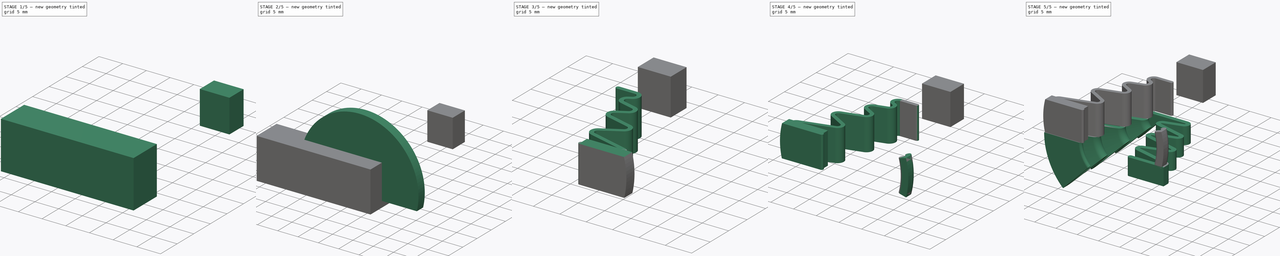
[diagram: build sequence overview — one tinted view per stage of 5, left to right]
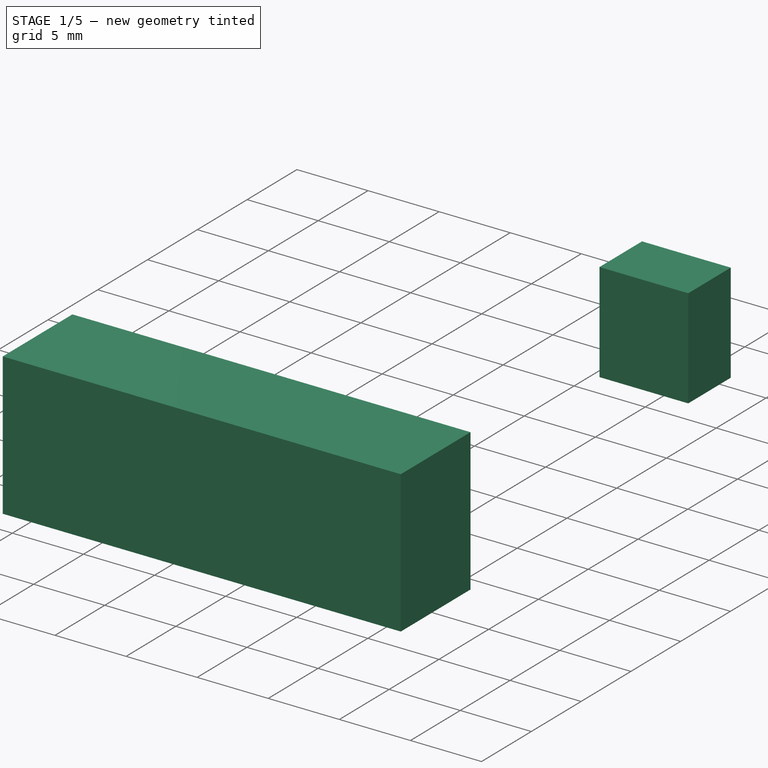
[diagram: stage 1 of 5 — iso view after this stage's code; geometry added in this stage tinted green]
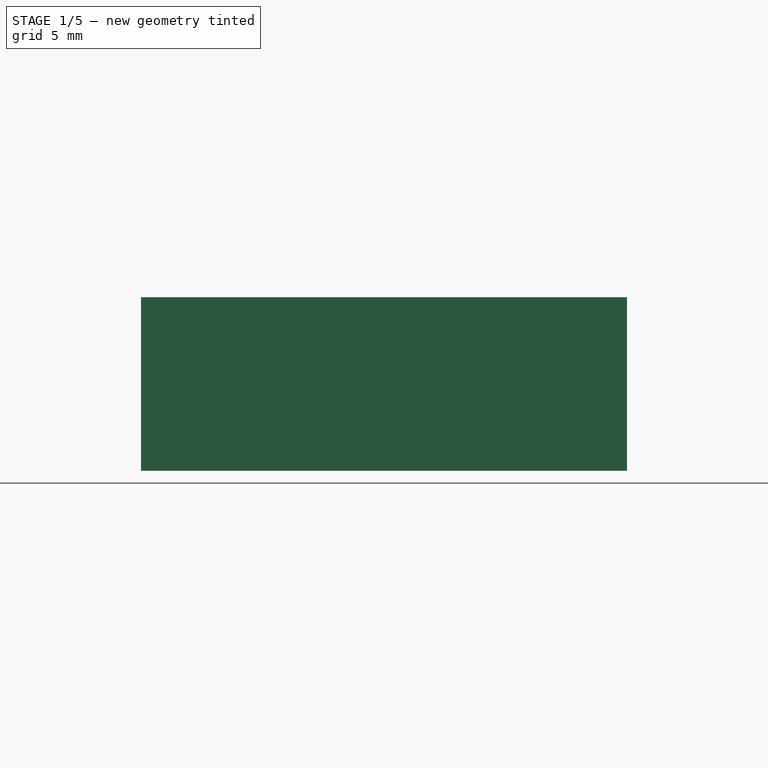
[diagram: stage 1 of 5 — front view after this stage's code; geometry added in this stage tinted green]
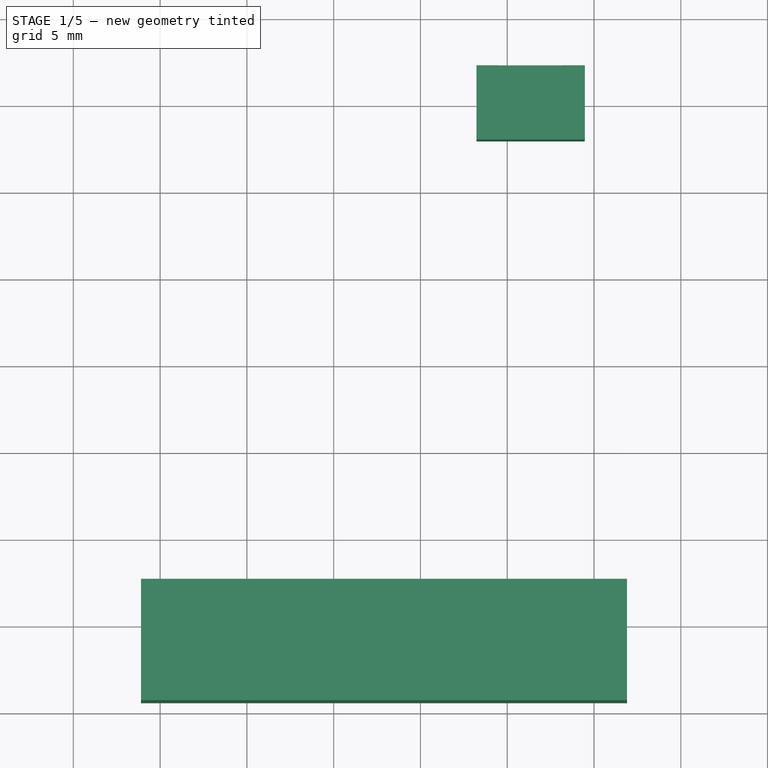
[diagram: stage 1 of 5 — top view after this stage's code; geometry added in this stage tinted green]
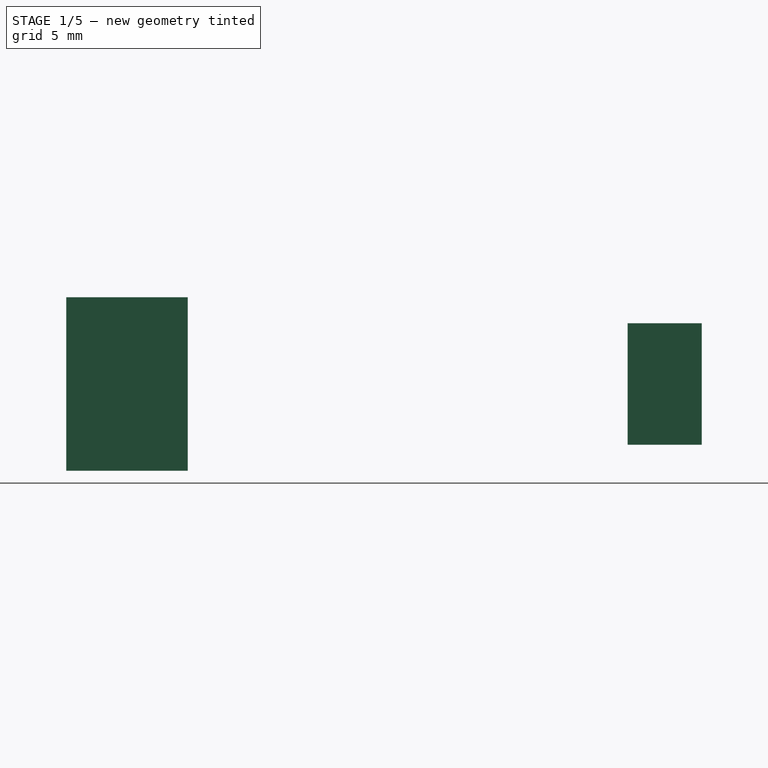
[diagram: stage 1 of 5 — right view after this stage's code; geometry added in this stage tinted green]
FCSTD DOCUMENT  (FreeCAD 0.21R33771 (Git))
Label: Modul-drazice-spring_42
License: All rights reserved
LicenseURL: https://en.wikipedia.org/wiki/All_rights_reserved
objects: Sketcher::SketchObject×5, Part::Offset2D×3, Part::Box×3, Part::Cut×3, Part::Revolution×2, Part::Extrusion×2, PartDesign::Pad×2, Part::FeaturePython×1, Part::Cylinder×1, Part::Compound×1, Part::Mirroring×1, PartDesign::Body×1
note: 27 computed .brp shape members not serialized (recipe doc carries the construction recipe); baked Part::Feature solids carry a one-line shape summary decoded from their .brp

FEATURE [Part::Box] Box002  label="Cube002"
  AttacherType = Attacher::AttachEngine3D
  Height = 10
  Length = 28
  Placement = pos=(-21.1,-4.4,-1.5) rot=(0,0,1;0rad)
  Width = 7
FEATURE [Sketcher::SketchObject] Sketch003
  FullyConstrained = false
  MapMode = 5
  Placement = pos=(0,0,7) rot=(0,0,1;0rad)
  sketch-geometry (12):
    g0: ArcOfCircle CenterX=1.34946 CenterY=30.6632 CenterZ=0 NormalX=0 NormalY=0 NormalZ=1 AngleXU=0 Radius=2.35 StartAngle=3.14159 EndAngle=6.28319
    g1: LineSegment StartX=-1.77054 StartY=32.2132 StartZ=0 EndX=-1.77054 EndY=27.9432 EndZ=0
    g2: LineSegment StartX=-1.77054 StartY=27.9432 StartZ=0 EndX=4.46946 EndY=27.9432 EndZ=0
    g3: LineSegment StartX=3.69946 StartY=30.6632 StartZ=0 EndX=3.69946 EndY=31.6632 EndZ=0
    g4: LineSegment StartX=3.69946 StartY=31.6632 StartZ=0 EndX=3.19946 EndY=31.6632 EndZ=0
    g5: LineSegment StartX=3.19946 StartY=31.6632 StartZ=0 EndX=3.19946 EndY=32.2132 EndZ=0
    g6: LineSegment StartX=3.19946 StartY=32.2132 StartZ=0 EndX=4.46946 EndY=32.2132 EndZ=0
    g7: LineSegment StartX=4.46946 StartY=32.2132 StartZ=0 EndX=4.46946 EndY=27.9432 EndZ=0
    g8: LineSegment StartX=-1.00054 StartY=30.6632 StartZ=0 EndX=-1.00054 EndY=31.6632 EndZ=0
    g9: LineSegment StartX=-1.00054 StartY=31.6632 StartZ=0 EndX=-0.500541 EndY=31.6632 EndZ=0
    g10: LineSegment StartX=-0.500541 StartY=31.6632 StartZ=0 EndX=-0.500541 EndY=32.2132 EndZ=0
    g11: LineSegment StartX=-0.500541 StartY=32.2132 StartZ=0 EndX=-1.77054 EndY=32.2132 EndZ=0
  constraints (33):
    c: Radius(g0) = 2.35
    c: Horizontal(g0,g0)
    c: Vertical(g1)
    c: Coincident(g2,g1)
    c: Horizontal(g2)
    c: Vertical(g3)
    c: Coincident(g4,g3)
    c: Horizontal(g4)
    c: Coincident(g5,g4)
    c: Vertical(g5)
    c: Coincident(g6,g5)
    c: Horizontal(g6)
    c: Coincident(g7,g6)
    c: Tangent(g3,g0) = -1.5708
    c: Coincident(g7,g2)
    c: Vertical(g7)
    c: DistanceY(g3,g3) = 1
    c: Coincident(g9,g8)
    c: Horizontal(g9)
    c: Coincident(g10,g9)
    c: Vertical(g10)
    c: Coincident(g11,g10)
    c: Horizontal(g11)
    c: Coincident(g11,g1)
    c: Tangent(g8,g0) = 1.5708
    c: Equal(g11,g6)
    c: Horizontal(g10,g5)
    c: Equal(g10,g5)
    c: Equal(g9,g4)
    c: DistanceY(g7,g7) = 4.27
    c: DistanceX(g2,g2) = 6.24
    c: DistanceY(g2,g0) = 2.72
    c: DistanceX(g4,g4) = 0.5
FEATURE [PartDesign::Pad] Pad
  Direction = (0,0,1)
  Length = 7
  Length2 = 10
  Placement = pos=(0,0,7) rot=(0,0,1;0rad)
  Profile = -> Sketch003
  ReferenceAxis = -> Sketch003 [N_Axis]
  Reversed = true
  Type = 0
FEATURE [Sketcher::SketchObject] Sketch004
  FullyConstrained = false
  MapMode = 5
  Placement = pos=(0,0,7) rot=(0,0,1;0rad)
  Support = -> [Pad]
  sketch-geometry (4):
    g0: LineSegment StartX=-1.76991 StartY=32.2088 StartZ=0 EndX=4.47012 EndY=32.2088 EndZ=0
    g1: LineSegment StartX=4.47012 StartY=32.2088 StartZ=0 EndX=4.47012 EndY=27.9435 EndZ=0
    g2: LineSegment StartX=4.47012 StartY=27.9435 StartZ=0 EndX=-1.76991 EndY=27.9435 EndZ=0
    g3: LineSegment StartX=-1.76991 StartY=27.9435 StartZ=0 EndX=-1.76991 EndY=32.2088 EndZ=0
  constraints (8):
    c: Coincident(g0,g1)
    c: Coincident(g1,g2)
    c: Coincident(g2,g3)
    c: Coincident(g3,g0)
    c: Horizontal(g0)
    c: Horizontal(g2)
    c: Vertical(g1)
    c: Vertical(g3)
FEATURE [PartDesign::Pad] Pad001
  BaseFeature = -> Pad
  Direction = (0,0,1)
  Length = 1
  Length2 = 10
  Placement = pos=(0,0,7) rot=(0,0,1;0rad)
  Profile = -> Sketch004
  ReferenceAxis = -> Sketch004 [N_Axis]
  Reversed = true
  Type = 0
FEATURE [PartDesign::Body] Body
  Group = -> [Sketch003,Pad,Sketch004,Pad001]
  Origin = -> Origin
  Placement = pos=(0,-7.8,0) rot=(0,0,1;0rad)
  Tip = -> Pad001
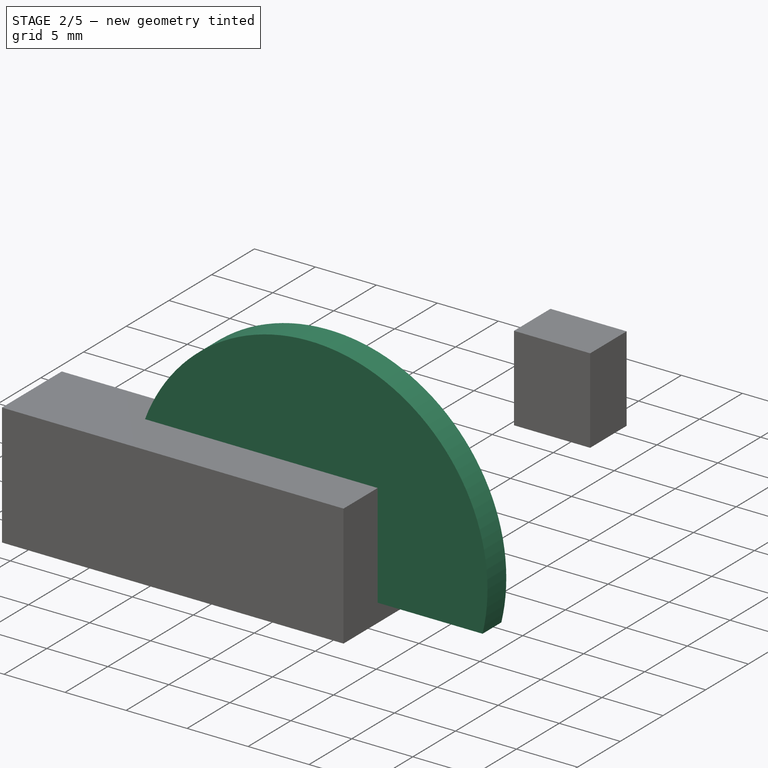
[diagram: stage 2 of 5 — iso view after this stage's code; geometry added in this stage tinted green]
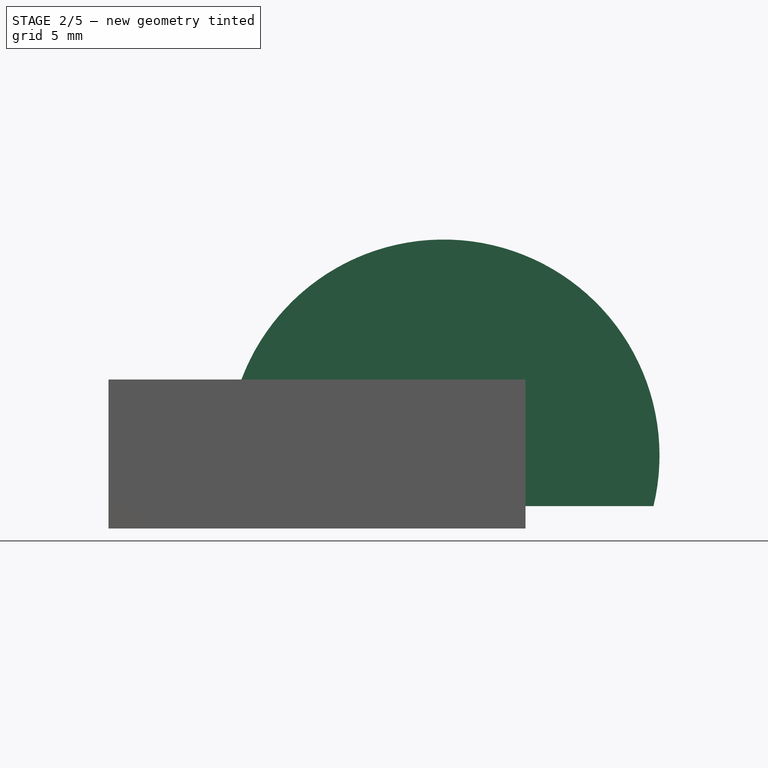
[diagram: stage 2 of 5 — front view after this stage's code; geometry added in this stage tinted green]
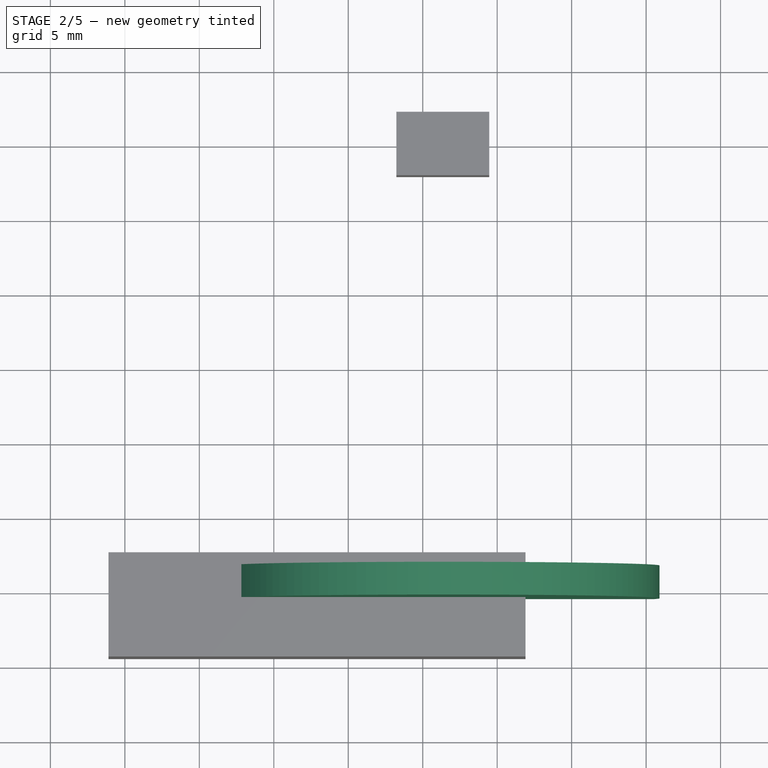
[diagram: stage 2 of 5 — top view after this stage's code; geometry added in this stage tinted green]
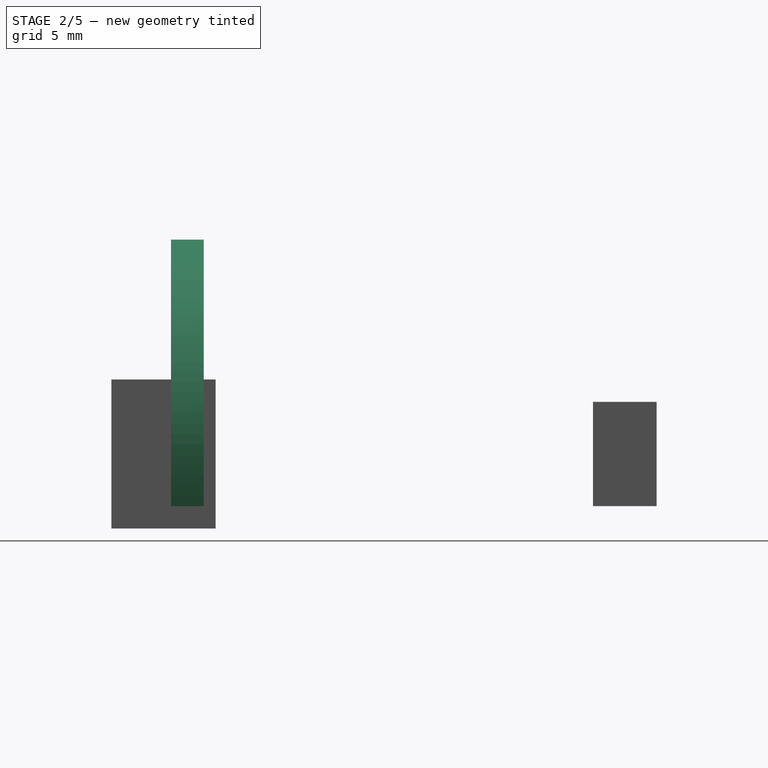
[diagram: stage 2 of 5 — right view after this stage's code; geometry added in this stage tinted green]
FEATURE [Part::Cylinder] Cylinder
  Angle = 360
  AttacherType = Attacher::AttachEngine3D
  FirstAngle = 0
  Height = 2.2
  Placement = pos=(1.4,1.8,3.4) rot=(1,0,0;1.5708rad)
  Radius = 14.5
  SecondAngle = 0
FEATURE [Part::Box] Box  label="Cube"
  AttacherType = Attacher::AttachEngine3D
  Height = 18
  Length = 32
  Placement = pos=(-16,-2,-18) rot=(0,0,1;0rad)
  Width = 4
FEATURE [Part::Cut] Cut
  Base = -> Cylinder
  Tool = -> Box
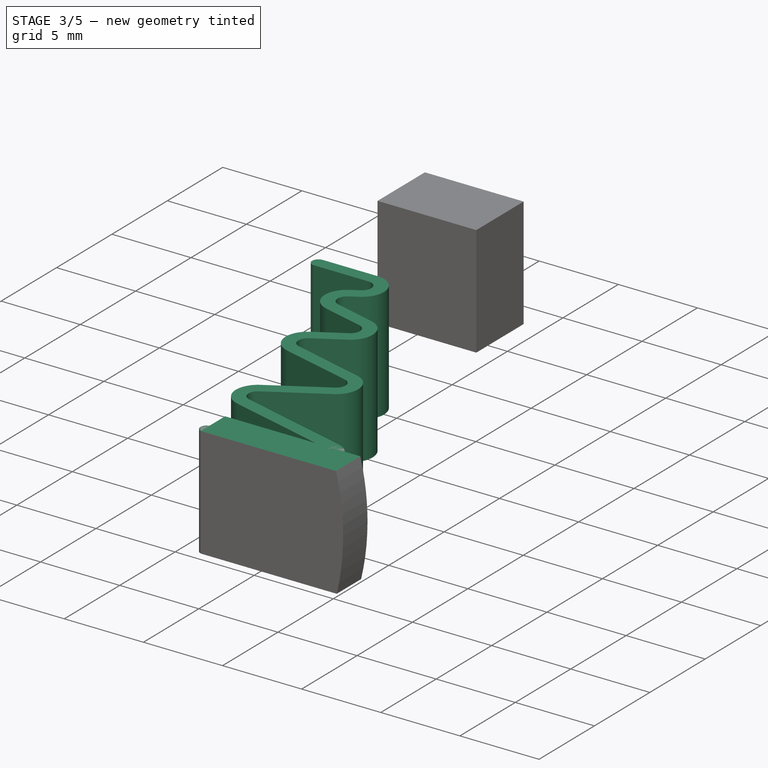
[diagram: stage 3 of 5 — iso view after this stage's code; geometry added in this stage tinted green]
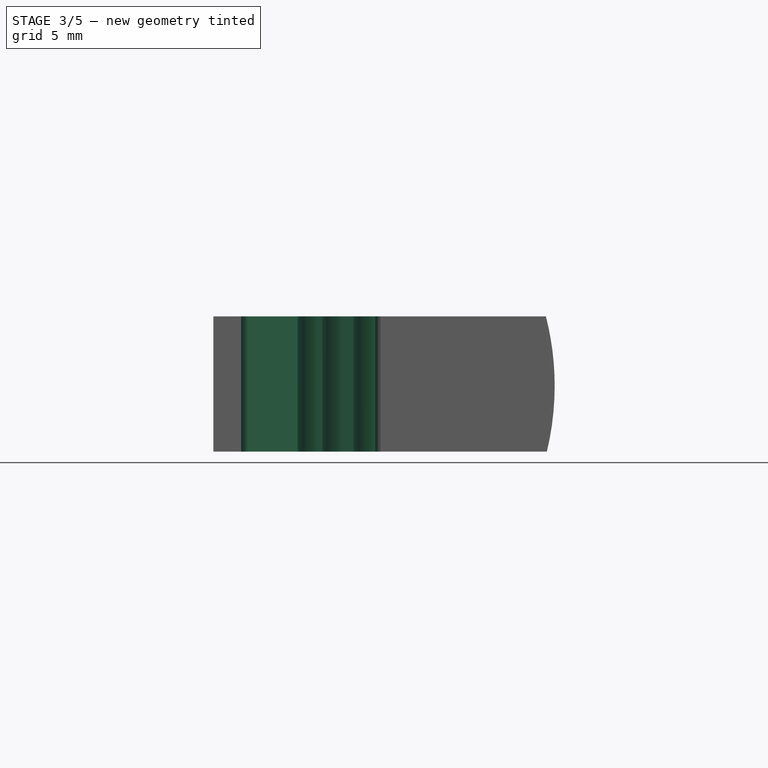
[diagram: stage 3 of 5 — front view after this stage's code; geometry added in this stage tinted green]
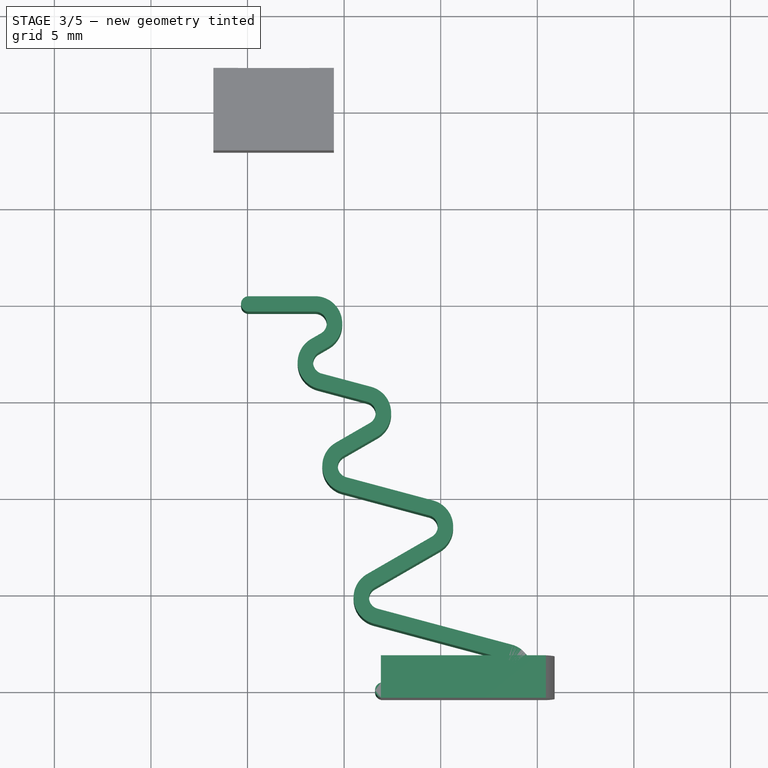
[diagram: stage 3 of 5 — top view after this stage's code; geometry added in this stage tinted green]
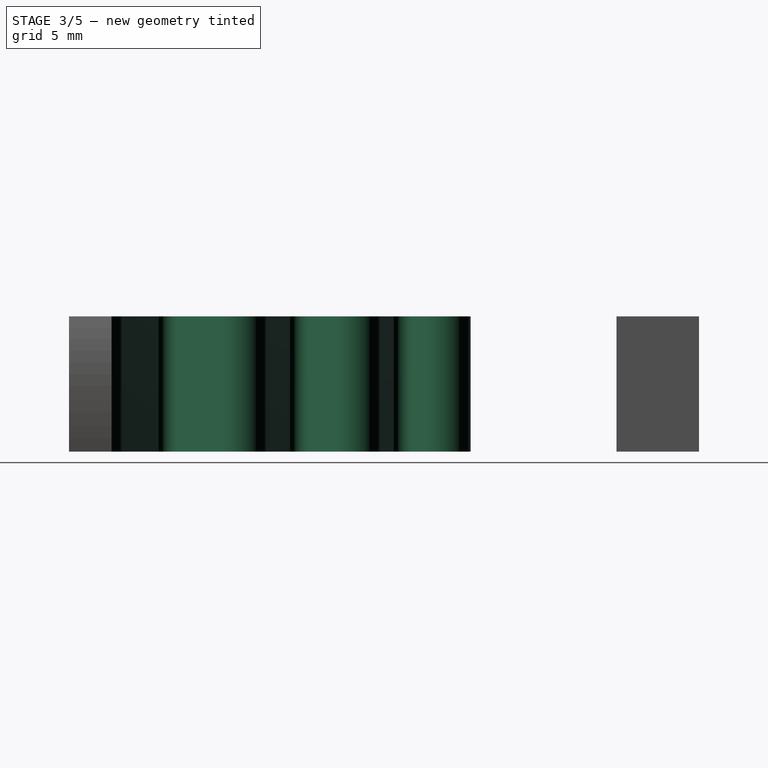
[diagram: stage 3 of 5 — right view after this stage's code; geometry added in this stage tinted green]
FEATURE [Part::Extrusion] Extrude001
  Base = -> Offset2D002
  Dir = (0,0,1)
  DirMode = 2
  FaceMakerClass = Part::FaceMakerBullseye
  LengthFwd = 7
  LengthRev = 0
  Solid = true
  Symmetric = false
FEATURE [Part::Box] Box001  label="Cube001"
  AttacherType = Attacher::AttachEngine3D
  Height = 18
  Length = 32
  Placement = pos=(-16,-3,7) rot=(0,0,1;0rad)
  Width = 5
FEATURE [Part::Cut] Cut001
  Base = -> Cut
  Tool = -> Box001
FEATURE [Part::Cut] Cut002
  Base = -> Cut001
  Tool = -> Box002
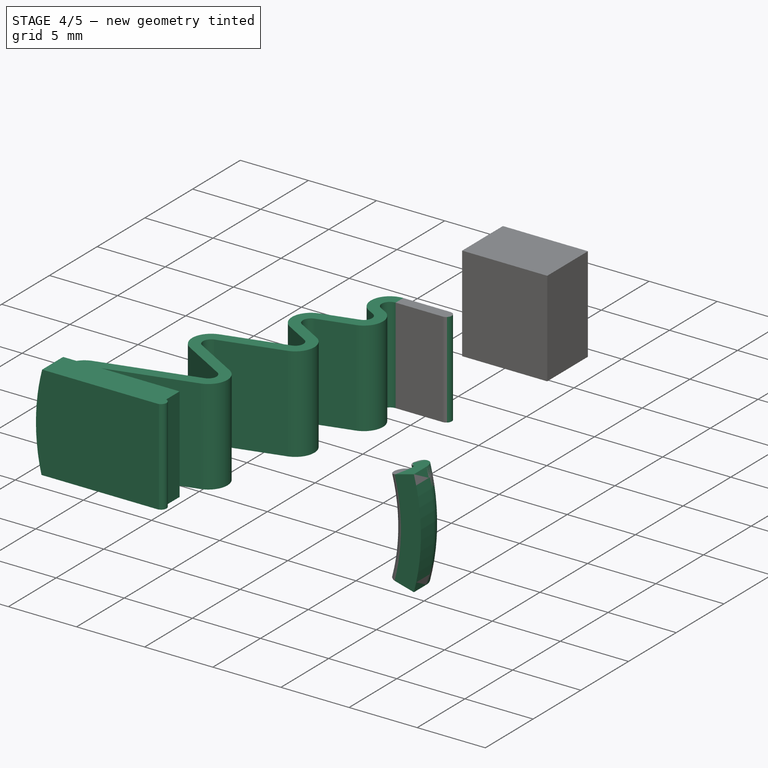
[diagram: stage 4 of 5 — iso view after this stage's code; geometry added in this stage tinted green]
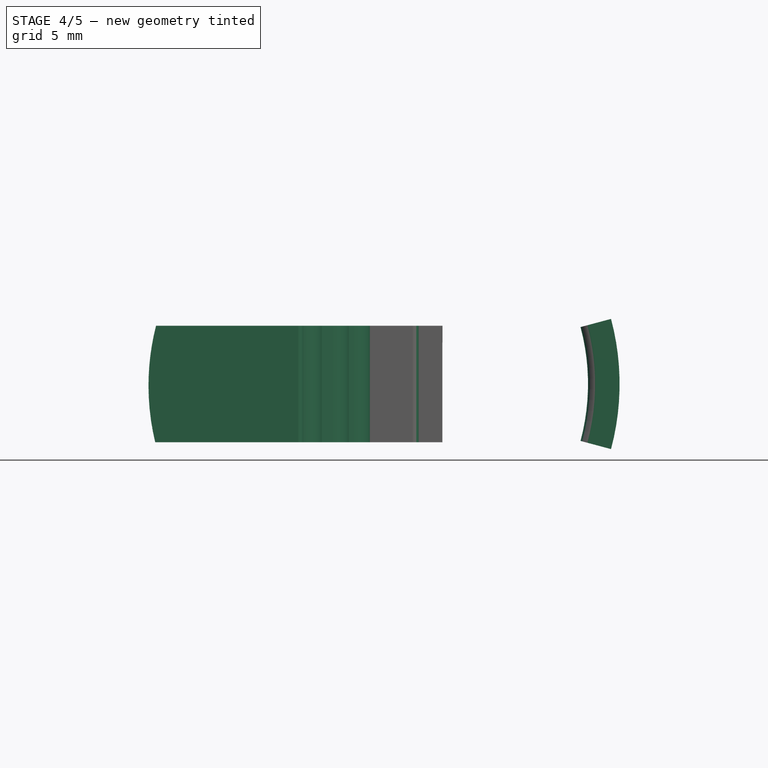
[diagram: stage 4 of 5 — front view after this stage's code; geometry added in this stage tinted green]
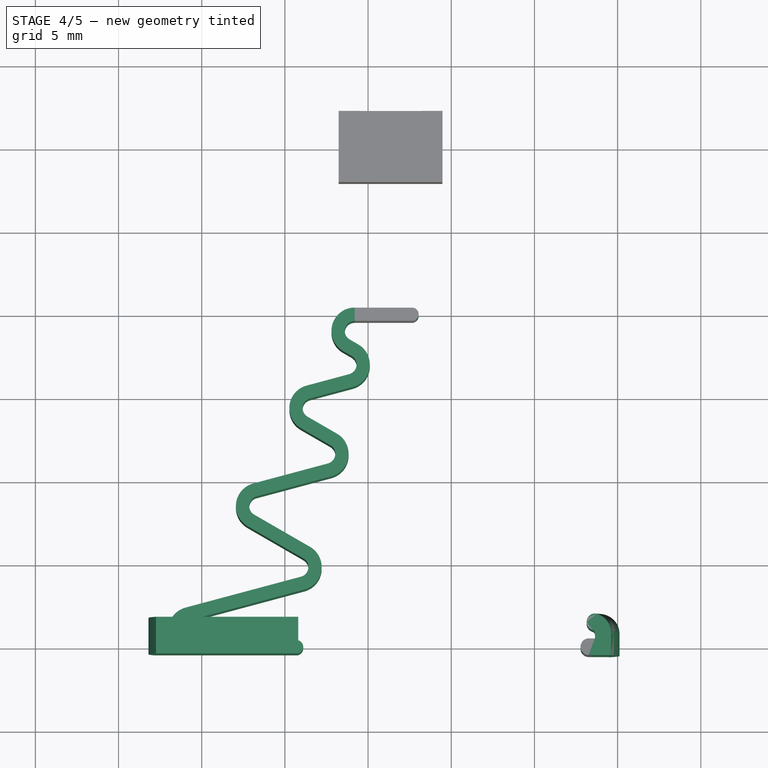
[diagram: stage 4 of 5 — top view after this stage's code; geometry added in this stage tinted green]
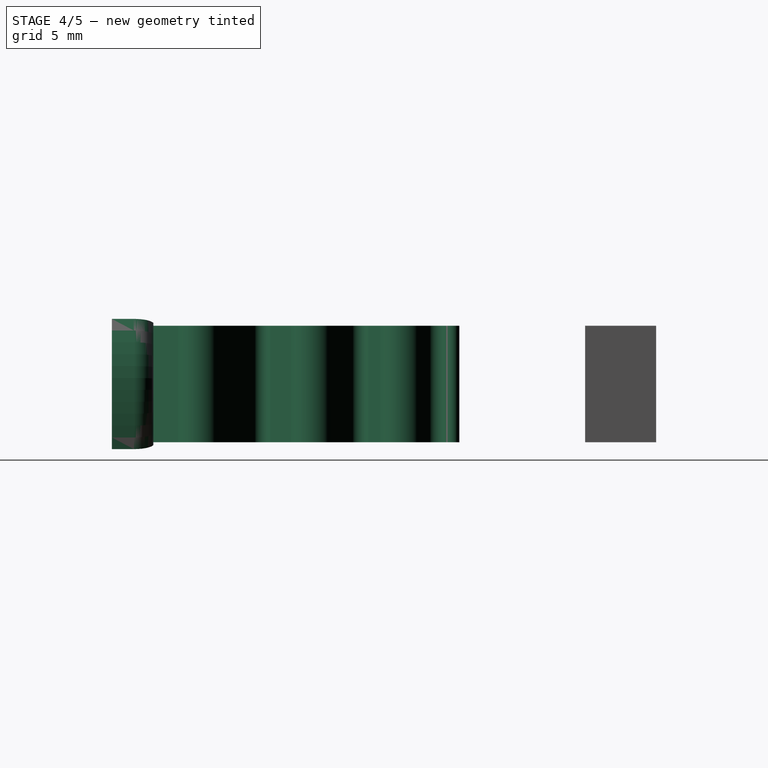
[diagram: stage 4 of 5 — right view after this stage's code; geometry added in this stage tinted green]
FEATURE [Sketcher::SketchObject] Sketch001
  FullyConstrained = false
  sketch-geometry (4):
    g0: LineSegment StartX=13.721 StartY=0 StartZ=0 EndX=14.6185 EndY=0 EndZ=0
    g1: ArcOfCircle CenterX=13.9185 CenterY=0.818954 CenterZ=0 NormalX=0 NormalY=0 NormalZ=1 AngleXU=0 Radius=0.7 StartAngle=1e-16 EndAngle=1.309
    g2: LineSegment StartX=7 StartY=0 StartZ=0 EndX=2.24532 EndY=17.3533 EndZ=0
    g3: LineSegment StartX=14.6185 StartY=0.818954 StartZ=0 EndX=14.6185 EndY=0 EndZ=0
  constraints (6):
    c: PointOnObject(g0,g-1)
    c: Horizontal(g0)
    c: Vertical(g3)
    c: Tangent(g1,g3) = 1.5708
    c: Coincident(g0,g3)
    c: Radius(g1) = 0.7
FEATURE [Part::Offset2D] Offset2D001  label="OffsetRot"
  Fill = false
  Intersection = false
  Join = 1
  Mode = 1
  SelfIntersection = false
  Source = -> Sketch001
  Value = 0.5
FEATURE [Sketcher::SketchObject] Sketch002
  FullyConstrained = false
  sketch-geometry (17):
    g0: LineSegment StartX=13.5743 StartY=1.96593 StartZ=0 EndX=6.62963 EndY=3.82674 EndZ=0
    g1: ArcOfCircle CenterX=6.88845 CenterY=4.79266 CenterZ=0 NormalX=0 NormalY=0 NormalZ=1 AngleXU=0 Radius=1 StartAngle=2.0944 EndAngle=4.45059
    g2: LineSegment StartX=6.38845 StartY=5.65869 StartZ=0 EndX=9.74495 EndY=7.59657 EndZ=0
    g3: ArcOfCircle CenterX=9.24495 CenterY=8.46259 CenterZ=0 NormalX=0 NormalY=0 NormalZ=1 AngleXU=0 Radius=1 StartAngle=5.23599 EndAngle=7.59218
    g4: LineSegment StartX=9.50377 StartY=9.42852 StartZ=0 EndX=5.01168 EndY=10.6322 EndZ=0
    g5: ArcOfCircle CenterX=5.2705 CenterY=11.5981 CenterZ=0 NormalX=0 NormalY=0 NormalZ=1 AngleXU=0 Radius=1 StartAngle=2.0944 EndAngle=4.45059
    g6: LineSegment StartX=4.7705 StartY=12.4641 StartZ=0 EndX=6.53443 EndY=13.4825 EndZ=0
    g7: LineSegment StartX=15 StartY=0 StartZ=0 EndX=3 EndY=22 EndZ=0
    g8: LineSegment StartX=7 StartY=0 StartZ=0 EndX=0.616508 EndY=26.8503 EndZ=0
    g9: ArcOfCircle CenterX=6.03443 CenterY=14.3486 CenterZ=0 NormalX=0 NormalY=0 NormalZ=1 AngleXU=0 Radius=1 StartAngle=5.23599 EndAngle=7.59218
    g10: LineSegment StartX=6.29325 StartY=15.3145 StartZ=0 EndX=3.73556 EndY=15.9998 EndZ=0
    g11: ArcOfCircle CenterX=3.99438 CenterY=16.9657 CenterZ=0 NormalX=0 NormalY=0 NormalZ=1 AngleXU=0 Radius=1 StartAngle=2.0944 EndAngle=4.45059
    g12: LineSegment StartX=3.49438 StartY=17.8318 StartZ=0 EndX=4.0022 EndY=18.1249 EndZ=0
    g13: ArcOfCircle CenterX=3.5022 CenterY=18.991 CenterZ=0 NormalX=0 NormalY=0 NormalZ=1 AngleXU=0 Radius=1 StartAngle=5.23599 EndAngle=7.85398
    g14: LineSegment StartX=13.3155 StartY=0 StartZ=0 EndX=7 EndY=0 EndZ=0
    g15: ArcOfCircle CenterX=13.3155 CenterY=1 CenterZ=0 NormalX=0 NormalY=0 NormalZ=1 AngleXU=0 Radius=1 StartAngle=4.71239 EndAngle=7.59218
    g16: LineSegment StartX=3.5022 StartY=19.991 StartZ=0 EndX=0.060759 EndY=19.991 EndZ=0
  constraints (43):
    c: Tangent(g1,g0) = 1.5708
    c: Tangent(g2,g1) = 1.5708
    c: Tangent(g4,g3) = -1.5708
    c: Tangent(g5,g4) = 1.5708
    c: Tangent(g6,g5) = 1.5708
    c: Tangent(g3,g2) = -1.5708
    c: PointOnObject(g7,g-1)
    c: DistanceX(g-1,g7) = 15
    c: DistanceY(g-1,g7) = 22
    c: DistanceX(g-1,g7) = 3
    c: Tangent(g3,g7)
    c: Tangent(g5,g8)
    c: Tangent(g1,g8)
    c: Angle(g0,g2) = 0.785398
    c: Angle(g4,g2) = 0.785398
    c: Angle(g4,g6) = 0.785398
    c: Equal(g1,g3)
    c: Equal(g3,g5)
    c: DistanceX(g8,g7) = 8
    c: Tangent(g10,g9) = -1.5708
    c: Tangent(g6,g9) = -1.5708
    c: Equal(g9,g5)
    c: Tangent(g9,g7)
    c: Angle(g10,g6) = 0.785398
    c: Tangent(g11,g10) = 1.5708
    c: Tangent(g12,g11) = 1.5708
    c: Tangent(g13,g12) = -1.5708
    c: Tangent(g13,g7)
    c: Tangent(g11,g8)
    c: Angle(g10,g12) = 0.785398
    c: Equal(g9,g11)
    c: Equal(g11,g13)
    c: PointOnObject(g14,g-1)
    c: Coincident(g14,g8)
    c: Horizontal(g14)
    c: Tangent(g14,g15) = 1.5708
    c: Tangent(g15,g0) = -1.5708
    c: Tangent(g15,g7)
    c: Equal(g1,g15)
    c: Angle(g0,g14) = 0.261799
    c: Radius(g15) = 1
    c: Horizontal(g16)
    c: Tangent(g13,g16) = -1.5708
FEATURE [Part::Offset2D] Offset2D002  label="OffsetExtrd"
  Fill = false
  Intersection = false
  Join = 1
  Mode = 1
  SelfIntersection = false
  Source = -> Sketch002
  Value = 0.4
FEATURE [Part::Revolution] Revolve001  label="Revolve002"
  Angle = -30
  Axis = (0,1,0)
  Base = (0,0,0)
  FaceMakerClass = Part::FaceMakerBullseye
  Placement = pos=(0,0,3.5) rot=(0,0,1;0rad)
  Solid = true
  Source = -> Offset2D001
  Symmetric = true
FEATURE [Part::Compound] Compound
  Links = -> [Extrude001,Cut002]
FEATURE [Part::Mirroring] Part__Mirroring  label="Compound (Mirror #1)"
  Base = (0,0,0)
  Normal = (1,0,0)
  Placement = pos=(2.7,0,0) rot=(0,0,1;0rad)
  Source = -> Compound
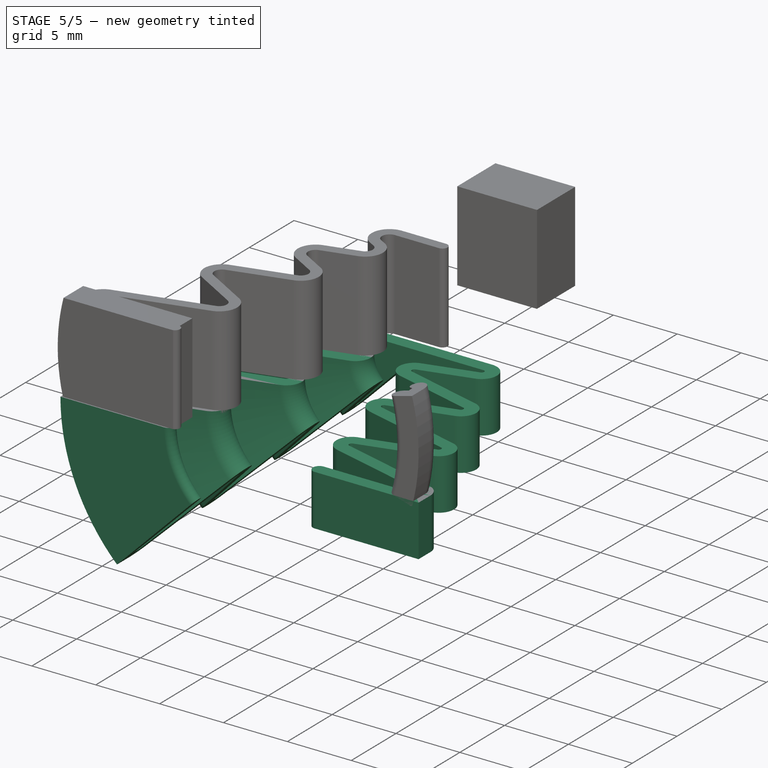
[diagram: stage 5 of 5 — iso view after this stage's code; geometry added in this stage tinted green]
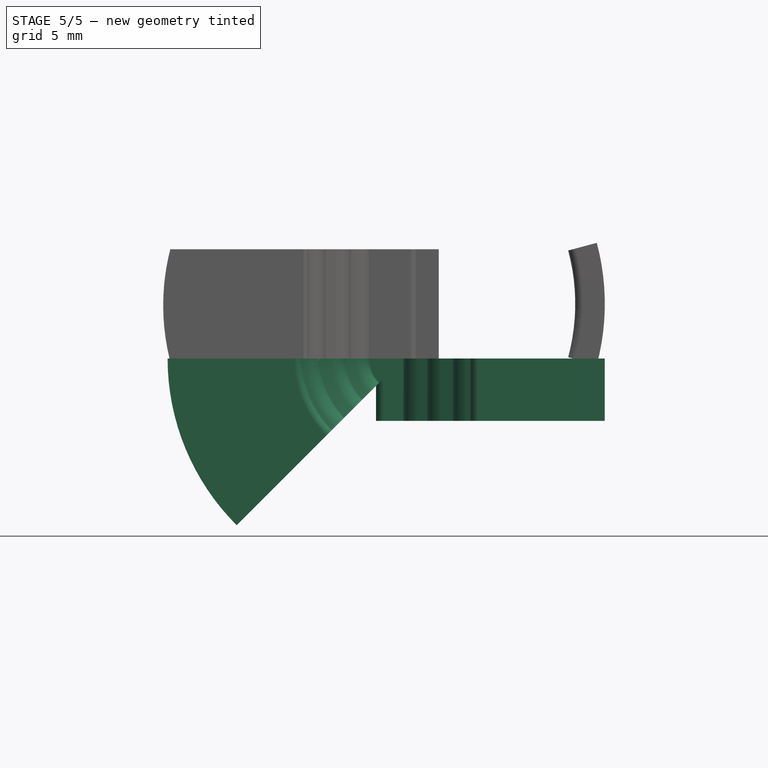
[diagram: stage 5 of 5 — front view after this stage's code; geometry added in this stage tinted green]
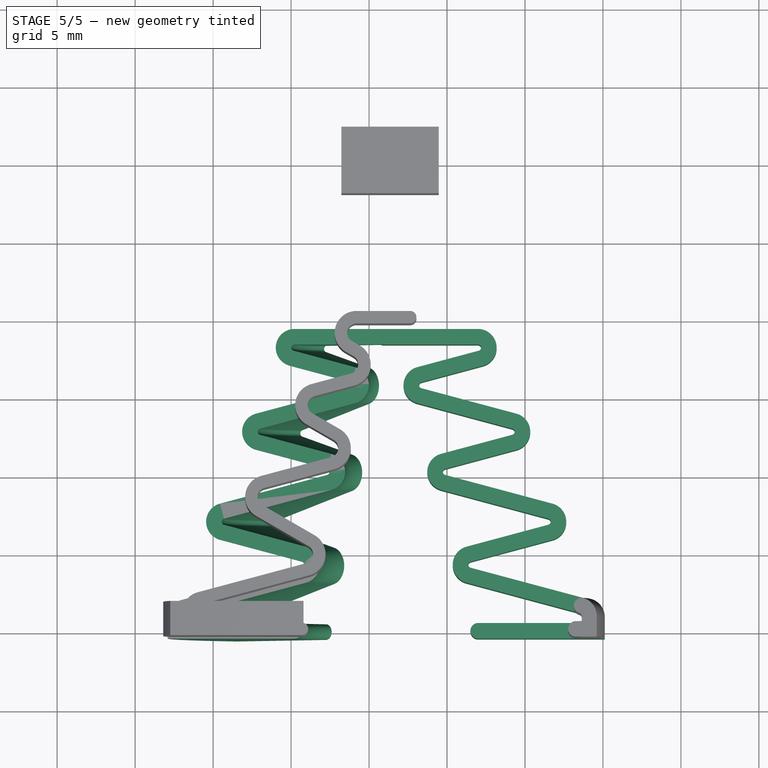
[diagram: stage 5 of 5 — top view after this stage's code; geometry added in this stage tinted green]
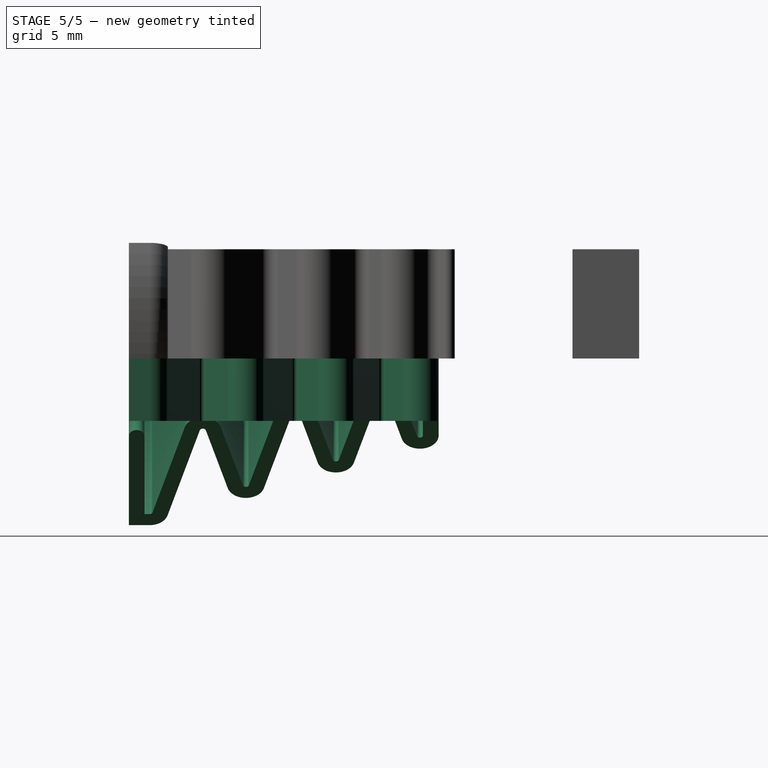
[diagram: stage 5 of 5 — right view after this stage's code; geometry added in this stage tinted green]
FEATURE [Sketcher::SketchObject] Sketch
  FullyConstrained = false
  sketch-geometry (18):
    g0: LineSegment StartX=7 StartY=0 StartZ=0 EndX=14.6185 EndY=0 EndZ=0
    g1: ArcOfCircle CenterX=13.9185 CenterY=0.818954 CenterZ=0 NormalX=0 NormalY=0 NormalZ=1 AngleXU=0 Radius=0.7 StartAngle=2e-16 EndAngle=1.309
    g2: LineSegment StartX=14.0997 StartY=1.4951 StartZ=0 EndX=6.38321 EndY=3.56272 EndZ=0
    g3: ArcOfCircle CenterX=6.56438 CenterY=4.23887 CenterZ=0 NormalX=0 NormalY=0 NormalZ=1 AngleXU=0 Radius=0.7 StartAngle=1.8326 EndAngle=4.45059
    g4: LineSegment StartX=6.38321 StartY=4.91502 StartZ=0 EndX=11.6286 EndY=6.32051 EndZ=0
    g5: ArcOfCircle CenterX=11.4474 CenterY=6.99666 CenterZ=0 NormalX=0 NormalY=0 NormalZ=1 AngleXU=0 Radius=0.7 StartAngle=4.97419 EndAngle=7.59218
    g6: LineSegment StartX=11.6286 StartY=7.67281 StartZ=0 EndX=4.75224 EndY=9.51532 EndZ=0
    g7: ArcOfCircle CenterX=4.93342 CenterY=10.1915 CenterZ=0 NormalX=0 NormalY=0 NormalZ=1 AngleXU=0 Radius=0.7 StartAngle=1.8326 EndAngle=4.45059
    g8: LineSegment StartX=4.75224 StartY=10.8676 StartZ=0 EndX=9.32016 EndY=12.0916 EndZ=0
    g9: LineSegment StartX=15 StartY=0 StartZ=0 EndX=3 EndY=30 EndZ=0
    g10: LineSegment StartX=7 StartY=0 StartZ=0 EndX=2.24532 EndY=17.3533 EndZ=0
    g11: ArcOfCircle CenterX=9.13898 CenterY=12.7677 CenterZ=0 NormalX=0 NormalY=0 NormalZ=1 AngleXU=0 Radius=0.7 StartAngle=4.97419 EndAngle=7.59218
    g12: LineSegment StartX=9.32016 StartY=13.4439 StartZ=0 EndX=3.22863 EndY=15.0761 EndZ=0
    g13: ArcOfCircle CenterX=3.40981 CenterY=15.7522 CenterZ=0 NormalX=0 NormalY=0 NormalZ=1 AngleXU=0 Radius=0.7 StartAngle=1.8326 EndAngle=4.45059
    g14: LineSegment StartX=3.22863 StartY=16.4284 StartZ=0 EndX=7.16368 EndY=17.4828 EndZ=0
    g15: ArcOfCircle CenterX=6.9825 CenterY=18.1589 CenterZ=0 NormalX=0 NormalY=0 NormalZ=1 AngleXU=0 Radius=0.7 StartAngle=4.97419 EndAngle=7.85398
    g16: LineSegment StartX=6.9825 StartY=18.8589 StartZ=0 EndX=0.950056 EndY=18.8589 EndZ=0
    g17: LineSegment StartX=14.6185 StartY=0.818954 StartZ=0 EndX=14.6185 EndY=0 EndZ=0
  constraints (45):
    c: PointOnObject(g0,g-1)
    c: Tangent(g2,g1) = -1.5708
    c: Tangent(g3,g2) = 1.5708
    c: Tangent(g4,g3) = 1.5708
    c: Tangent(g6,g5) = -1.5708
    c: Tangent(g7,g6) = 1.5708
    c: Tangent(g8,g7) = 1.5708
    c: Tangent(g5,g4) = -1.5708
    c: Horizontal(g0)
    c: PointOnObject(g9,g-1)
    c: DistanceX(g-1,g9) = 15
    c: DistanceY(g-1,g9) = 30
    c: Tangent(g1,g9)
    c: DistanceX(g-1,g9) = 3
    c: Tangent(g5,g9)
    c: Tangent(g7,g10)
    c: Tangent(g3,g10)
    c: Angle(g2,g0) = 0.261799
    c: Angle(g2,g4) = 0.523599
    c: Angle(g6,g4) = 0.523599
    c: Angle(g6,g8) = 0.523599
    c: Equal(g3,g5)
    c: Equal(g5,g7)
    c: Equal(g1,g3)
    c: DistanceX(g10,g9) = 8
    c: Tangent(g12,g11) = -1.5708
    c: Tangent(g8,g11) = -1.5708
    c: Equal(g11,g7)
    c: Tangent(g11,g9)
    c: Angle(g12,g8) = 0.523599
    c: Tangent(g13,g12) = 1.5708
    c: Tangent(g14,g13) = 1.5708
    c: Tangent(g15,g14) = -1.5708
    c: Tangent(g16,g15) = -1.5708
    c: Tangent(g15,g9)
    c: Tangent(g13,g10)
    c: Angle(g12,g14) = 0.523599
    c: Angle(g16,g14) = 0.261799
    c: Equal(g11,g13)
    c: Equal(g13,g15)
    c: Vertical(g17)
    c: Tangent(g1,g17) = 1.5708
    c: Coincident(g0,g17)
    c: Coincident(g0,g10)
    c: Radius(g1) = 0.7
FEATURE [Part::Offset2D] Offset2D
  Fill = false
  Intersection = false
  Join = 1
  Mode = 1
  SelfIntersection = false
  Source = -> Sketch
  Value = 0.5
FEATURE [Part::Revolution] Revolve
  Angle = 45
  Axis = (0,1,0)
  Base = (0,0,0)
  FaceMakerClass = Part::FaceMakerBullseye
  Solid = true
  Source = -> Offset2D
  Symmetric = false
FEATURE [Part::FeaturePython] Clone  label="Revolve001"  # Draft clone (typed FeaturePython)
  AttacherType = Attacher::AttachEngine3D
  Fuse = false
  Objects = -> [Revolve]
  Placement = pos=(2.2,0,0) rot=(0,1,0;2.35619rad)
  Scale = (1,1,1)
FEATURE [Part::Extrusion] Extrude
  Base = -> Offset2D
  Dir = (0,0,1)
  DirMode = 2
  FaceMakerClass = Part::FaceMakerBullseye
  LengthFwd = 4
  LengthRev = 0
  Reversed = true
  Solid = true
  Symmetric = false
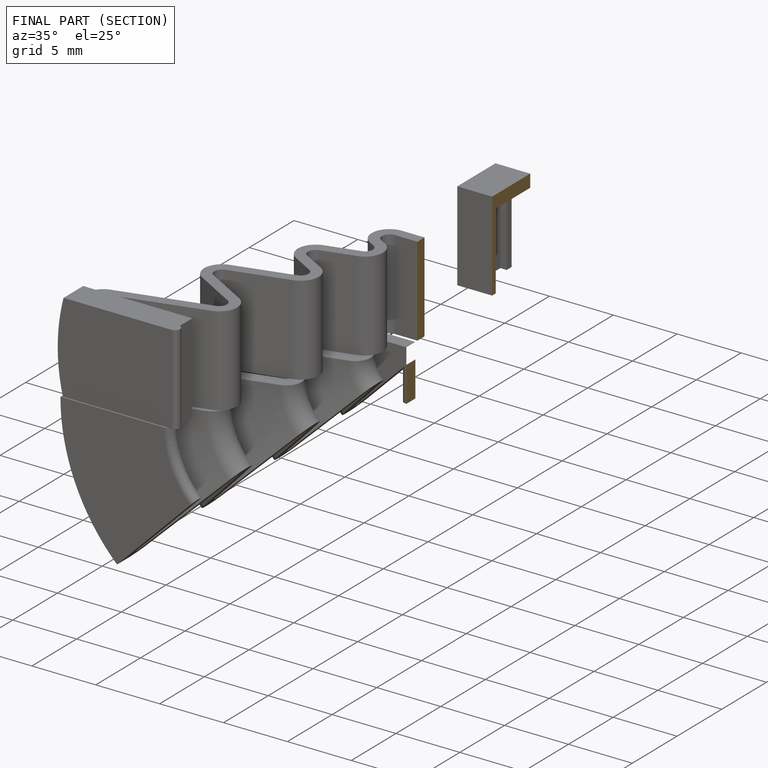
[diagram: finished part — half-section view (interior)]
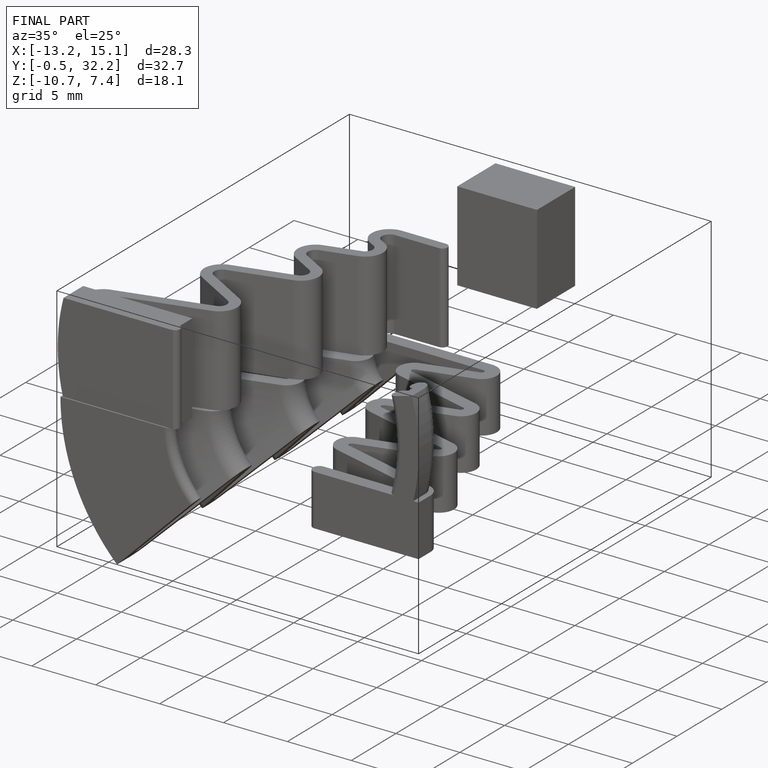
[diagram: finished part — iso view with bounding-box wireframe]
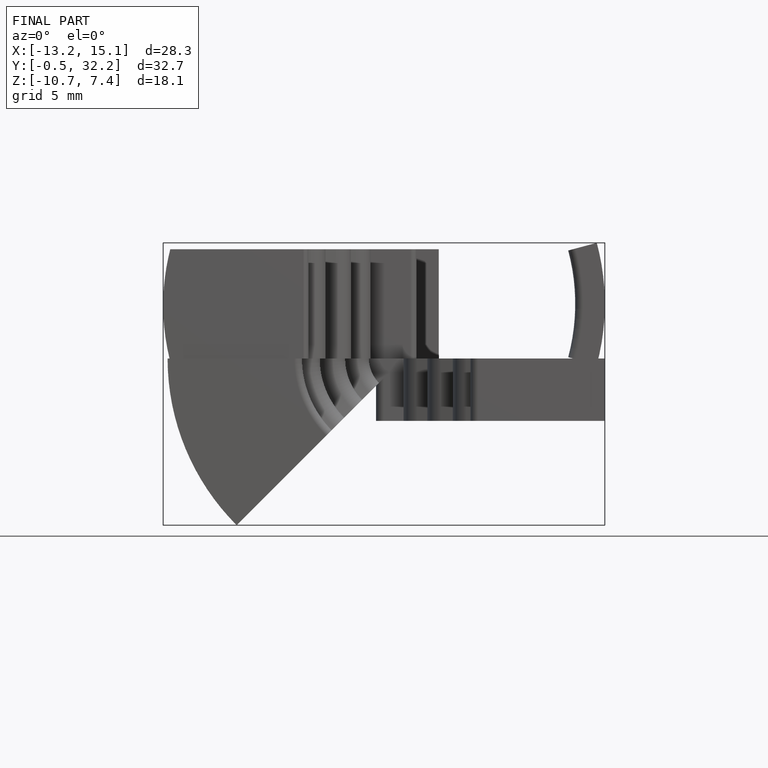
[diagram: finished part — front view with bounding-box wireframe]
